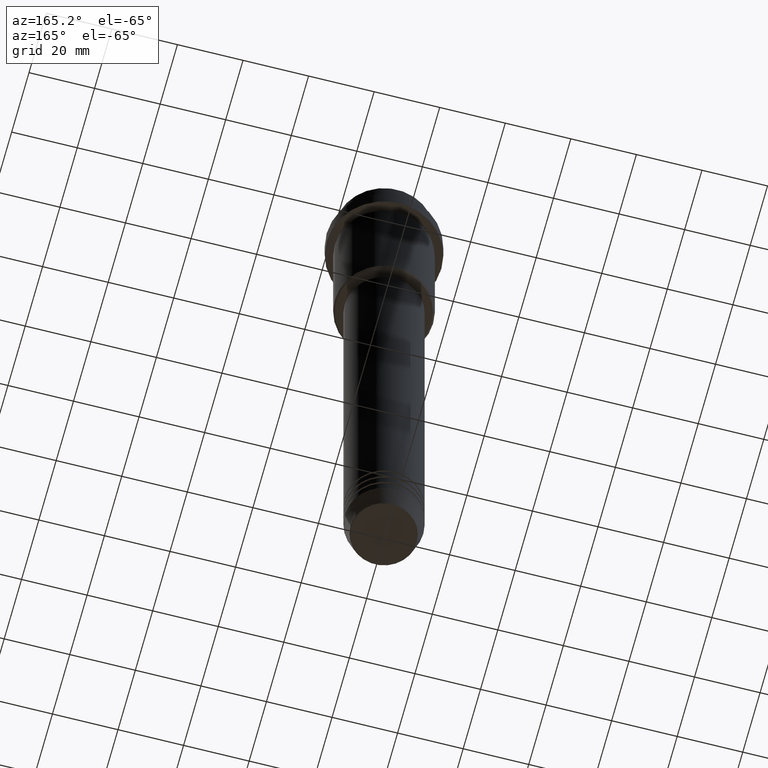
[diagram: clean part render]
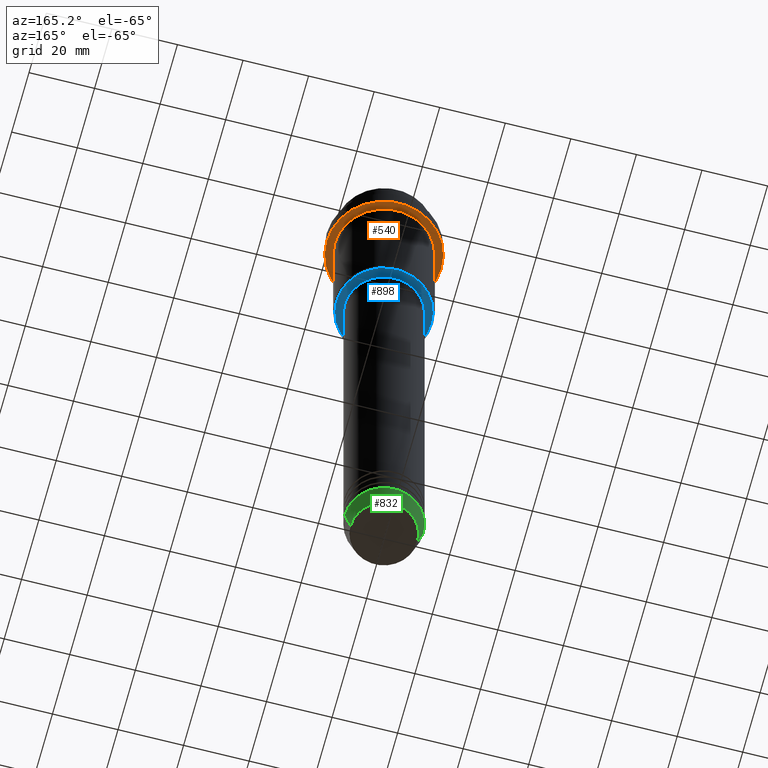
[diagram: same view with three faces highlighted in distinct colors, each labeled with its STEP entity id]
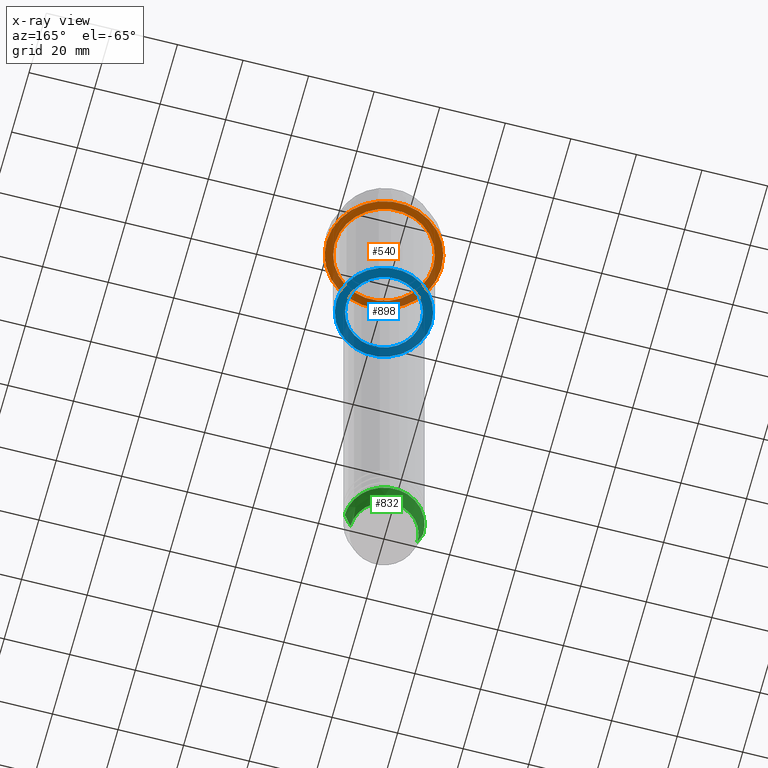
[diagram: x-ray of the same camera — body ghosted, the three highlighted faces saturated]
A machine part, auxiliary view with three faces highlighted in distinct colors.
The next image is the same camera in x-ray (body ghosted, the three faces saturated) — at least one of them is partly hidden behind the body in this view.
Their STEP definitions:

[orange] entity #540 — the highlighted planar face has unit normal (0, 0, -1).
#13 = DIRECTION ( 'NONE',  ( -0.000000000000000000, -0.000000000000000000, 1.000000000000000000 ) ) ;
#25 = EDGE_LOOP ( 'NONE', ( #447, #665 ) ) ;
#56 = AXIS2_PLACEMENT_3D ( 'NONE', #445, #13, #772 ) ;
#85 = CARTESIAN_POINT ( 'NONE',  ( 17.50000000000000000, 0.000000000000000000, -15.00000000000000178 ) ) ;
#155 = VERTEX_POINT ( 'NONE', #1060 ) ;
#173 = AXIS2_PLACEMENT_3D ( 'NONE', #566, #352, #792 ) ;
#202 = DIRECTION ( 'NONE',  ( -0.000000000000000000, -0.000000000000000000, 1.000000000000000000 ) ) ;
#255 = CARTESIAN_POINT ( 'NONE',  ( 0.000000000000000000, 17.50000000000000000, -15.00000000000000000 ) ) ;
#332 = DIRECTION ( 'NONE',  ( 0.000000000000000000, 0.000000000000000000, -1.000000000000000000 ) ) ;
#352 = DIRECTION ( 'NONE',  ( -0.000000000000000000, -0.000000000000000000, 1.000000000000000000 ) ) ;
#416 = VERTEX_POINT ( 'NONE', #1337 ) ;
#436 = ORIENTED_EDGE ( 'NONE', *, *, #681, .F. ) ;
#445 = CARTESIAN_POINT ( 'NONE',  ( 0.000000000000000000, 0.000000000000000000, -15.00000000000000000 ) ) ;
#447 = ORIENTED_EDGE ( 'NONE', *, *, #575, .T. ) ;
#540 = ADVANCED_FACE ( 'NONE', ( #1106, #786 ), #1200, .T. ) ;
#548 = CARTESIAN_POINT ( 'NONE',  ( 14.99999999999999645, 1.836970198721029194E-15, -15.00000000000000000 ) ) ;
#566 = CARTESIAN_POINT ( 'NONE',  ( 0.000000000000000000, 0.000000000000000000, -15.00000000000000000 ) ) ;
#575 = EDGE_CURVE ( 'NONE', #416, #904, #1112, .T. ) ;
#624 = DIRECTION ( 'NONE',  ( 1.000000000000000000, 0.000000000000000000, 0.000000000000000000 ) ) ;
#646 = CARTESIAN_POINT ( 'NONE',  ( 0.000000000000000000, 0.000000000000000000, -15.00000000000000178 ) ) ;
#662 = EDGE_CURVE ( 'NONE', #904, #416, #1212, .T. ) ;
#665 = ORIENTED_EDGE ( 'NONE', *, *, #662, .T. ) ;
#681 = EDGE_CURVE ( 'NONE', #155, #896, #1069, .T. ) ;
#772 = DIRECTION ( 'NONE',  ( -1.000000000000000000, 0.000000000000000000, 0.000000000000000000 ) ) ;
#777 = DIRECTION ( 'NONE',  ( -1.000000000000000000, 0.000000000000000000, -0.000000000000000000 ) ) ;
#786 = FACE_OUTER_BOUND ( 'NONE', #872, .T. ) ;
#792 = DIRECTION ( 'NONE',  ( -1.000000000000000000, 0.000000000000000000, 0.000000000000000000 ) ) ;
#854 = EDGE_CURVE ( 'NONE', #896, #155, #884, .T. ) ;
#872 = EDGE_LOOP ( 'NONE', ( #1312, #436 ) ) ;
#884 = CIRCLE ( 'NONE', #1141, 17.50000000000000000 ) ;
#896 = VERTEX_POINT ( 'NONE', #85 ) ;
#904 = VERTEX_POINT ( 'NONE', #548 ) ;
#949 = AXIS2_PLACEMENT_3D ( 'NONE', #255, #332, #777 ) ;
#1060 = CARTESIAN_POINT ( 'NONE',  ( -17.50000000000000000, 2.143131898507868248E-15, -15.00000000000000178 ) ) ;
#1069 = CIRCLE ( 'NONE', #1138, 17.50000000000000000 ) ;
#1106 = FACE_BOUND ( 'NONE', #25, .T. ) ;
#1112 = CIRCLE ( 'NONE', #56, 14.99999999999999645 ) ;
#1138 = AXIS2_PLACEMENT_3D ( 'NONE', #646, #202, #624 ) ;
#1141 = AXIS2_PLACEMENT_3D ( 'NONE', #1267, #1145, #1246 ) ;
#1145 = DIRECTION ( 'NONE',  ( -0.000000000000000000, -0.000000000000000000, 1.000000000000000000 ) ) ;
#1200 = PLANE ( 'NONE',  #949 ) ;
#1212 = CIRCLE ( 'NONE', #173, 14.99999999999999645 ) ;
#1246 = DIRECTION ( 'NONE',  ( 1.000000000000000000, 0.000000000000000000, 0.000000000000000000 ) ) ;
#1267 = CARTESIAN_POINT ( 'NONE',  ( 0.000000000000000000, 0.000000000000000000, -15.00000000000000178 ) ) ;
#1312 = ORIENTED_EDGE ( 'NONE', *, *, #854, .F. ) ;
#1337 = CARTESIAN_POINT ( 'NONE',  ( -14.99999999999999645, 0.000000000000000000, -15.00000000000000000 ) ) ;

[blue] entity #898 — the highlighted planar face has unit normal (0, 0, -1).
#3 = VERTEX_POINT ( 'NONE', #475 ) ;
#10 = EDGE_LOOP ( 'NONE', ( #340, #336 ) ) ;
#35 = DIRECTION ( 'NONE',  ( -0.000000000000000000, -0.000000000000000000, 1.000000000000000000 ) ) ;
#69 = FACE_OUTER_BOUND ( 'NONE', #229, .T. ) ;
#164 = CARTESIAN_POINT ( 'NONE',  ( 14.49999999999998401, 0.000000000000000000, -55.00000000000002842 ) ) ;
#229 = EDGE_LOOP ( 'NONE', ( #910, #330 ) ) ;
#231 = DIRECTION ( 'NONE',  ( -0.000000000000000000, -0.000000000000000000, 1.000000000000000000 ) ) ;
#275 = EDGE_CURVE ( 'NONE', #834, #485, #1161, .T. ) ;
#300 = CARTESIAN_POINT ( 'NONE',  ( -14.49999999999998401, 1.806354028742345013E-15, -55.00000000000002842 ) ) ;
#330 = ORIENTED_EDGE ( 'NONE', *, *, #869, .T. ) ;
#336 = ORIENTED_EDGE ( 'NONE', *, *, #1359, .T. ) ;
#340 = ORIENTED_EDGE ( 'NONE', *, *, #584, .T. ) ;
#475 = CARTESIAN_POINT ( 'NONE',  ( 11.49999999999999467, 0.000000000000000000, -55.00000000000002842 ) ) ;
#485 = VERTEX_POINT ( 'NONE', #300 ) ;
#489 = CARTESIAN_POINT ( 'NONE',  ( 0.000000000000000000, 0.000000000000000000, -55.00000000000002842 ) ) ;
#518 = FACE_BOUND ( 'NONE', #10, .T. ) ;
#526 = DIRECTION ( 'NONE',  ( -1.000000000000000000, 0.000000000000000000, 0.000000000000000000 ) ) ;
#584 = EDGE_CURVE ( 'NONE', #3, #1258, #1303, .T. ) ;
#591 = DIRECTION ( 'NONE',  ( 1.000000000000000000, 0.000000000000000000, 0.000000000000000000 ) ) ;
#608 = AXIS2_PLACEMENT_3D ( 'NONE', #489, #1020, #1236 ) ;
#699 = AXIS2_PLACEMENT_3D ( 'NONE', #1206, #231, #1000 ) ;
#834 = VERTEX_POINT ( 'NONE', #164 ) ;
#869 = EDGE_CURVE ( 'NONE', #485, #834, #977, .T. ) ;
#878 = DIRECTION ( 'NONE',  ( 0.000000000000000000, 0.000000000000000000, -1.000000000000000000 ) ) ;
#898 = ADVANCED_FACE ( 'NONE', ( #69, #518 ), #1320, .T. ) ;
#910 = ORIENTED_EDGE ( 'NONE', *, *, #275, .T. ) ;
#960 = CARTESIAN_POINT ( 'NONE',  ( -11.49999999999999467, 1.408343819019455781E-15, -55.00000000000002842 ) ) ;
#977 = CIRCLE ( 'NONE', #608, 14.49999999999998401 ) ;
#988 = DIRECTION ( 'NONE',  ( -1.000000000000000000, 0.000000000000000000, -0.000000000000000000 ) ) ;
#1000 = DIRECTION ( 'NONE',  ( 1.000000000000000000, 0.000000000000000000, 0.000000000000000000 ) ) ;
#1020 = DIRECTION ( 'NONE',  ( 0.000000000000000000, 0.000000000000000000, -1.000000000000000000 ) ) ;
#1066 = DIRECTION ( 'NONE',  ( 0.000000000000000000, 0.000000000000000000, -1.000000000000000000 ) ) ;
#1111 = AXIS2_PLACEMENT_3D ( 'NONE', #1182, #1066, #526 ) ;
#1161 = CIRCLE ( 'NONE', #1111, 14.49999999999998401 ) ;
#1182 = CARTESIAN_POINT ( 'NONE',  ( 0.000000000000000000, 0.000000000000000000, -55.00000000000002842 ) ) ;
#1205 = CARTESIAN_POINT ( 'NONE',  ( 0.000000000000000000, 0.000000000000000000, -55.00000000000002842 ) ) ;
#1206 = CARTESIAN_POINT ( 'NONE',  ( 0.000000000000000000, 0.000000000000000000, -55.00000000000002842 ) ) ;
#1236 = DIRECTION ( 'NONE',  ( -1.000000000000000000, 0.000000000000000000, 0.000000000000000000 ) ) ;
#1258 = VERTEX_POINT ( 'NONE', #960 ) ;
#1262 = AXIS2_PLACEMENT_3D ( 'NONE', #1304, #878, #988 ) ;
#1266 = CIRCLE ( 'NONE', #1386, 11.49999999999999467 ) ;
#1303 = CIRCLE ( 'NONE', #699, 11.49999999999999467 ) ;
#1304 = CARTESIAN_POINT ( 'NONE',  ( 0.000000000000000000, 15.00000000000000000, -55.00000000000002842 ) ) ;
#1320 = PLANE ( 'NONE',  #1262 ) ;
#1359 = EDGE_CURVE ( 'NONE', #1258, #3, #1266, .T. ) ;
#1386 = AXIS2_PLACEMENT_3D ( 'NONE', #1205, #35, #591 ) ;

[green] entity #832 — the highlighted conical surface has half-angle 15 deg.
#52 = DIRECTION ( 'NONE',  ( -0.2588190451025213501, 3.169619151431772337E-17, 0.9659258262890680902 ) ) ;
#53 = VERTEX_POINT ( 'NONE', #787 ) ;
#162 = CARTESIAN_POINT ( 'NONE',  ( -12.00000000000000000, 1.469576158976823947E-15, -203.0000000000000000 ) ) ;
#266 = CARTESIAN_POINT ( 'NONE',  ( -12.00000000000000000, 1.469576158976823947E-15, -203.0000000000000000 ) ) ;
#277 = DIRECTION ( 'NONE',  ( 0.2588190451025213501, 0.000000000000000000, 0.9659258262890680902 ) ) ;
#343 = ORIENTED_EDGE ( 'NONE', *, *, #1278, .T. ) ;
#395 = EDGE_CURVE ( 'NONE', #53, #748, #586, .T. ) ;
#409 = VERTEX_POINT ( 'NONE', #1109 ) ;
#410 = AXIS2_PLACEMENT_3D ( 'NONE', #767, #1072, #1059 ) ;
#431 = AXIS2_PLACEMENT_3D ( 'NONE', #1134, #590, #1128 ) ;
#440 = LINE ( 'NONE', #1208, #1308 ) ;
#513 = EDGE_CURVE ( 'NONE', #763, #748, #881, .T. ) ;
#522 = AXIS2_PLACEMENT_3D ( 'NONE', #1417, #694, #1009 ) ;
#586 = LINE ( 'NONE', #162, #1092 ) ;
#590 = DIRECTION ( 'NONE',  ( -0.000000000000000000, -0.000000000000000000, 1.000000000000000000 ) ) ;
#694 = DIRECTION ( 'NONE',  ( -0.000000000000000000, -0.000000000000000000, 1.000000000000000000 ) ) ;
#748 = VERTEX_POINT ( 'NONE', #266 ) ;
#763 = VERTEX_POINT ( 'NONE', #1118 ) ;
#767 = CARTESIAN_POINT ( 'NONE',  ( 0.000000000000000000, 0.000000000000000000, -209.6294095225512706 ) ) ;
#782 = CIRCLE ( 'NONE', #410, 10.22365507213719127 ) ;
#787 = CARTESIAN_POINT ( 'NONE',  ( -10.22365507213719127, 1.360806402472382744E-15, -209.6294095225512706 ) ) ;
#832 = ADVANCED_FACE ( 'NONE', ( #1153 ), #950, .T. ) ;
#881 = CIRCLE ( 'NONE', #522, 12.00000000000000000 ) ;
#890 = ORIENTED_EDGE ( 'NONE', *, *, #513, .F. ) ;
#950 = CONICAL_SURFACE ( 'NONE', #431, 12.00000000000000000, 0.2617993877991500740 ) ;
#1003 = ORIENTED_EDGE ( 'NONE', *, *, #395, .T. ) ;
#1009 = DIRECTION ( 'NONE',  ( 1.000000000000000000, 0.000000000000000000, 0.000000000000000000 ) ) ;
#1016 = EDGE_CURVE ( 'NONE', #409, #763, #440, .T. ) ;
#1059 = DIRECTION ( 'NONE',  ( 1.000000000000000000, 0.000000000000000000, 0.000000000000000000 ) ) ;
#1072 = DIRECTION ( 'NONE',  ( -0.000000000000000000, -0.000000000000000000, 1.000000000000000000 ) ) ;
#1092 = VECTOR ( 'NONE', #52, 1000.000000000000000 ) ;
#1109 = CARTESIAN_POINT ( 'NONE',  ( 10.22365507213719127, 0.000000000000000000, -209.6294095225512706 ) ) ;
#1110 = ORIENTED_EDGE ( 'NONE', *, *, #1016, .F. ) ;
#1118 = CARTESIAN_POINT ( 'NONE',  ( 12.00000000000000000, 0.000000000000000000, -203.0000000000000000 ) ) ;
#1128 = DIRECTION ( 'NONE',  ( 1.000000000000000000, 0.000000000000000000, 0.000000000000000000 ) ) ;
#1134 = CARTESIAN_POINT ( 'NONE',  ( 0.000000000000000000, 0.000000000000000000, -203.0000000000000000 ) ) ;
#1153 = FACE_OUTER_BOUND ( 'NONE', #1209, .T. ) ;
#1208 = CARTESIAN_POINT ( 'NONE',  ( 12.00000000000000000, 0.000000000000000000, -203.0000000000000000 ) ) ;
#1209 = EDGE_LOOP ( 'NONE', ( #343, #1003, #890, #1110 ) ) ;
#1278 = EDGE_CURVE ( 'NONE', #409, #53, #782, .T. ) ;
#1308 = VECTOR ( 'NONE', #277, 1000.000000000000000 ) ;
#1417 = CARTESIAN_POINT ( 'NONE',  ( 0.000000000000000000, 0.000000000000000000, -203.0000000000000000 ) ) ;